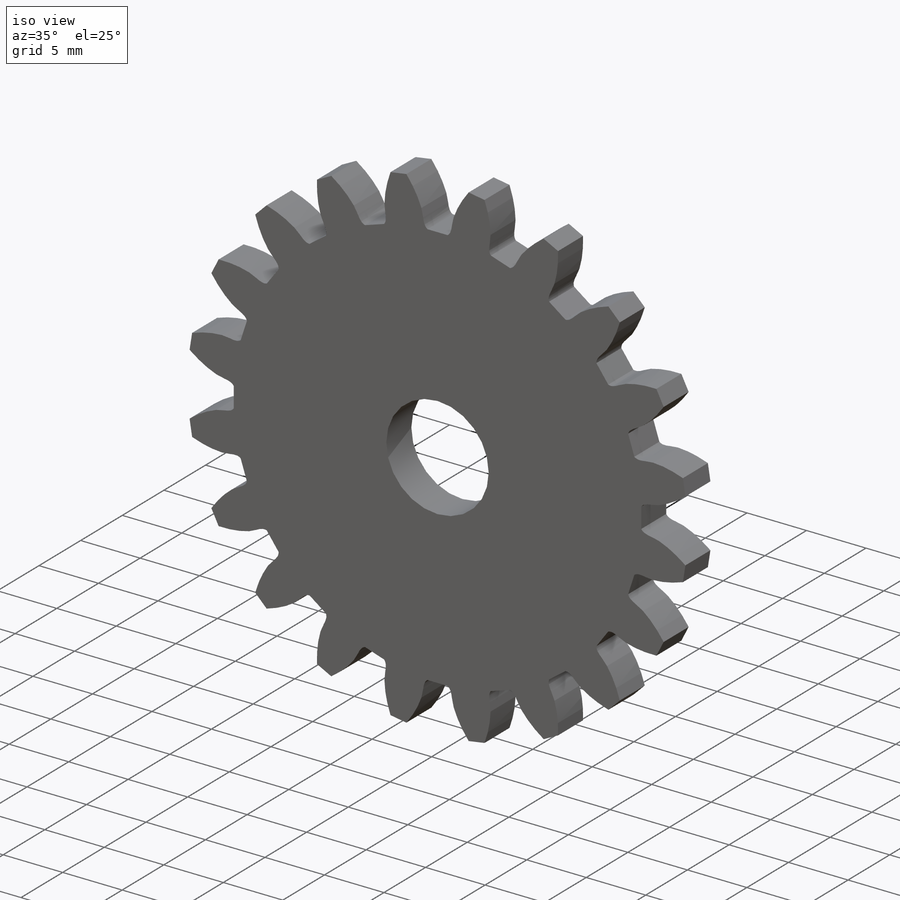
[diagram: iso view]
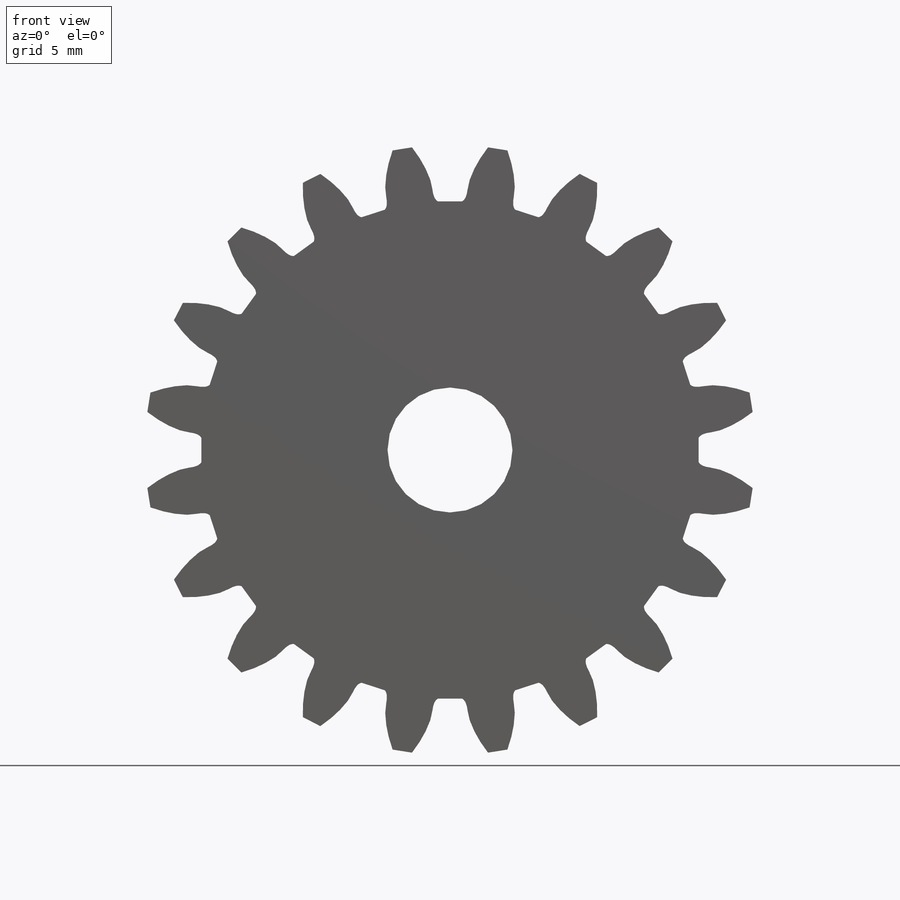
[diagram: front view]
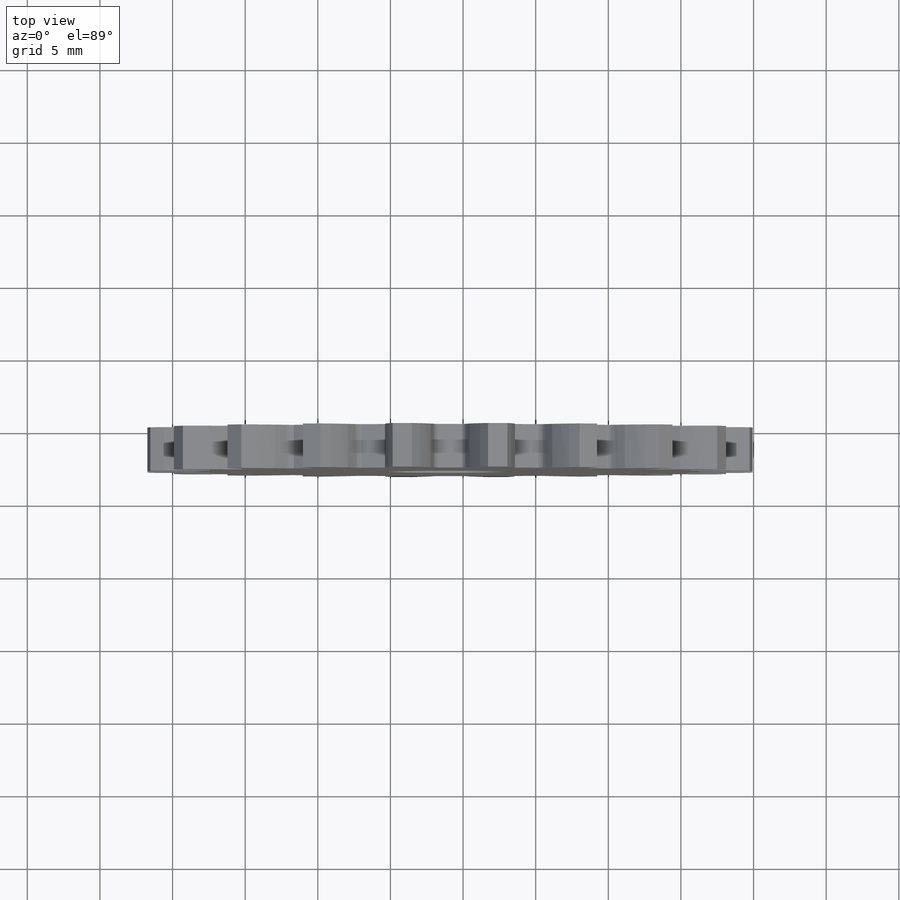
[diagram: top view]
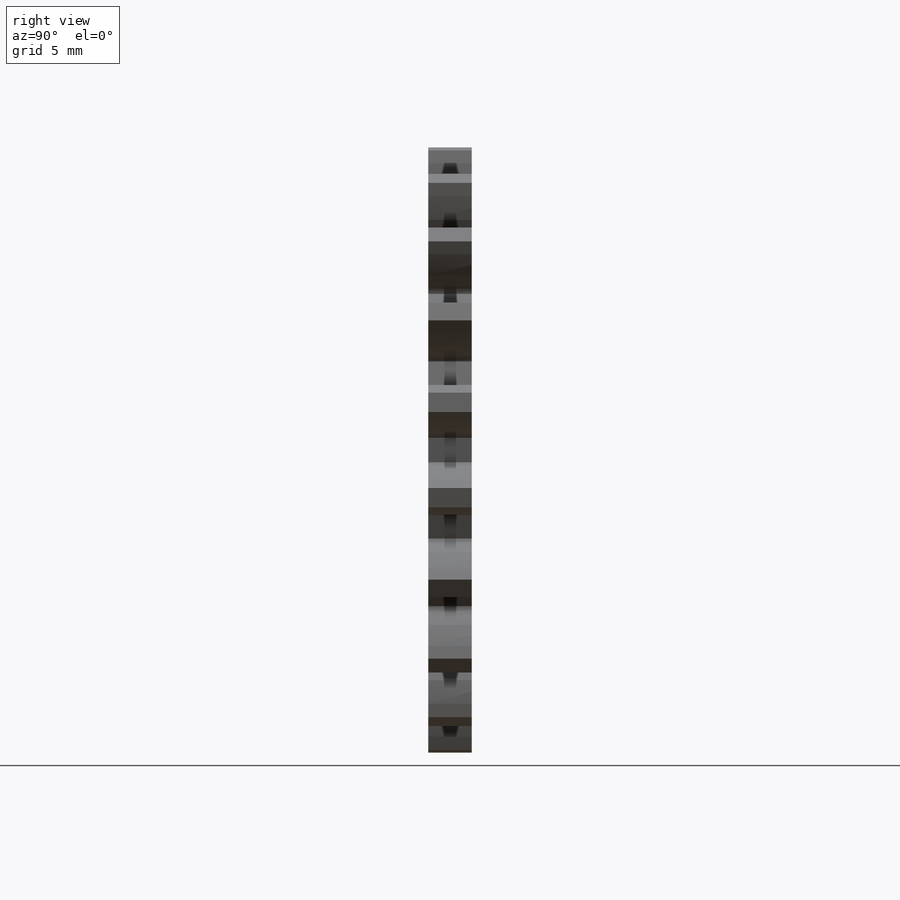
[diagram: right view]
SOLIDWORKS PART (.sldprt)
format: sldprt  version: not decoded by parser v0  size: 818,176 bytes
history: native  units: mm
features: sketch x7, material x1, extrude x1, cut_extrude x1, pattern_circular x1, plane x1 (+11 scaffold rows collapsed)
feature tree (23):
  scaffold x11  (default folders/planes/origin — collapsed)
  material  "Material <not specified>"
  sketch  "Model"
  sketch  "Sketch2"  dims[c1.D1=5.7mm c1.D4=42.0mm c1.D5=~19.691801mm c1.D6=~0.63861mm c1.D2=~19.098593mm c1.D3=~20.710015mm c2.D3=18.0deg c2.D5=~3.915069mm]
  sketch  "Sketch3"  dims[c1.D1=~1.959859mm c1.D2=~3.869719mm c1.D3=~1.666975mm c1.D4=~3.869719mm c2.D4=~18.881721deg c2.D5=6.0mm c2.D7=60.0mm c2.D8=60.0mm c2.D9=3.2mm c2.D10=~42.116905mm c3.D9=3.0mm c3.D8=~64.314018mm c4.D9=~3.842991mm c4.D6=11.0]
  sketch  "Sketch4"  dims[D1=8.6mm]
  sketch  "Sketch5"  dims[D1=3.0mm]
  extrude  "Boss-Extrude1"  [1 undecoded]
  sketch  "Sketch6"
  cut_extrude  "Cut-Extrude1"  [1 undecoded]
  pattern_circular  "CirPattern2"  Count=20 Angle=360deg
  plane  "axis_slide"
  sketch  "Sketch7"  dims[c1.D1=40.0mm c1.D2=10.0mm c1.D3=3.0mm c1.D4=80.0mm c1.D5=40.0mm c2.D3=3.0mm c2.D5=9.0mm c2.D6=~41.242991mm c2.D7=~23.071027mm c2.D2=2.0mm c2.D1=5.0mm]
decode coverage: 6 of 10 modeling features carry decoded parameters
note: ~ marks probable driven/reference dimensions
note: 2 parameter values undecoded
note: suppression state not decoded; provenance and decode notes live in map.json
